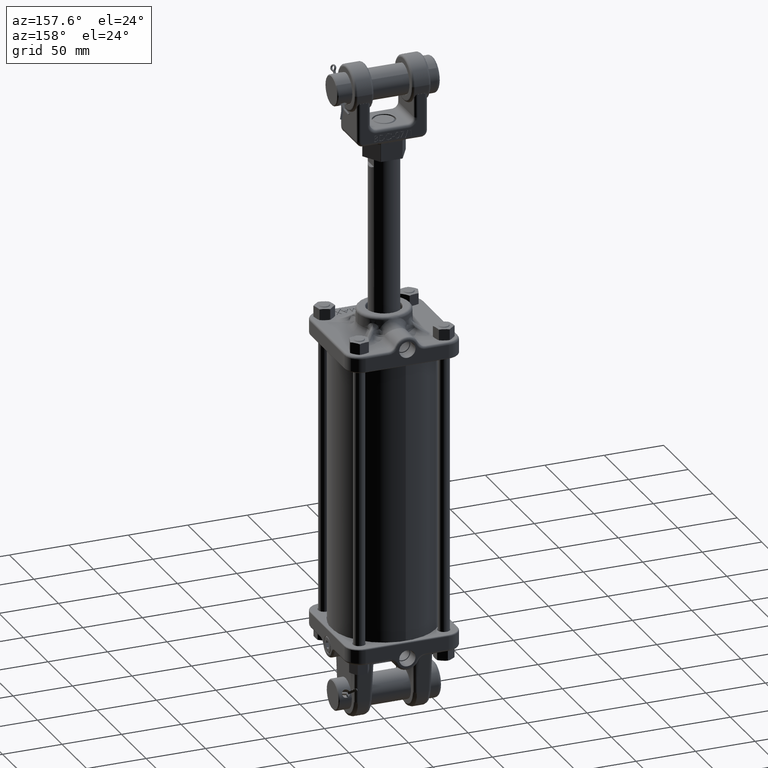
[diagram: clean part render]
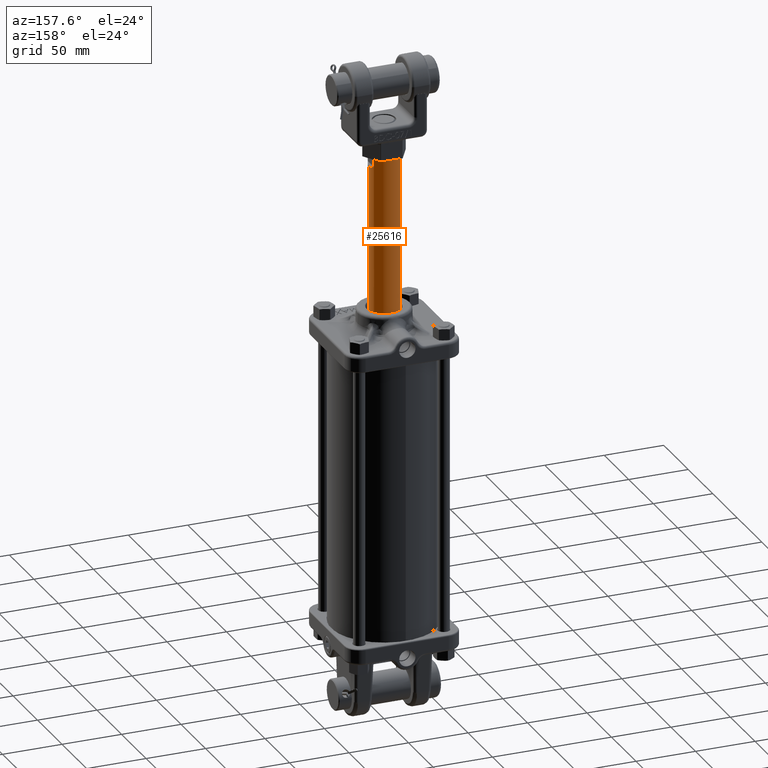
[diagram: same view with one face highlighted and labeled with its STEP entity id]
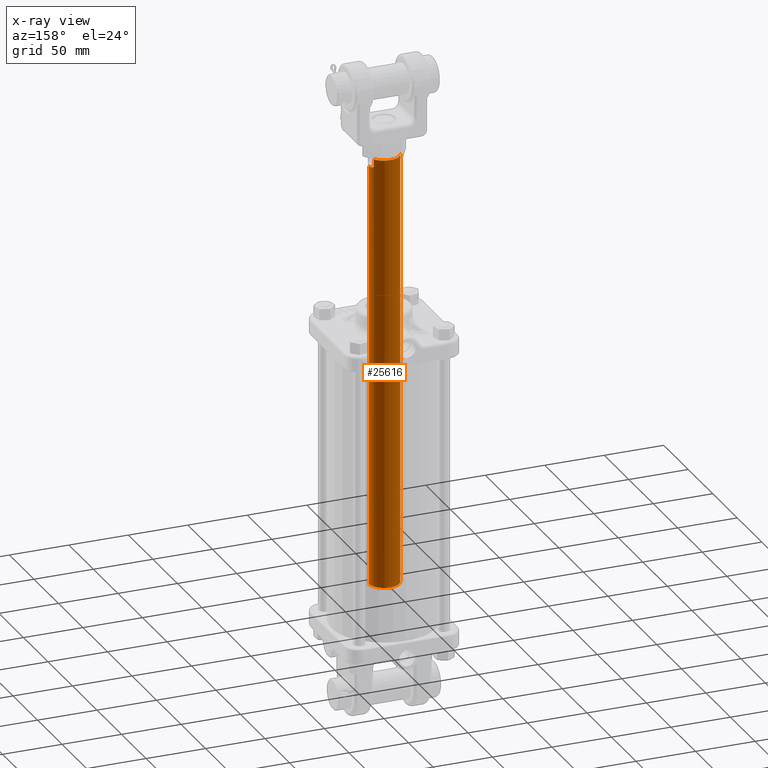
[diagram: x-ray of the same camera — body ghosted, the highlighted face saturated]
A machine part, auxiliary view. The second image highlights one B-rep face of the part: STEP entity #25616.
The next image is the same camera in x-ray: the body ghosted, the highlighted face saturated — about 0% of this face is hidden behind the body in this view.
In plain terms, the highlighted cylindrical surface (edge-blend (fillet) strip) has radius 12.7 mm, axis along (0, 0, 1).
Its self-contained STEP definition (entity closure, byte-faithful):
#530 = CARTESIAN_POINT ( 'NONE',  ( 0.000000000000000000, 0.000000000000000000, 0.000000000000000000 ) ) ;
#890 = ORIENTED_EDGE ( 'NONE', *, *, #12836, .T. ) ;
#1434 = DIRECTION ( 'NONE',  ( -0.000000000000000000, -0.000000000000000000, 1.000000000000000000 ) ) ;
#1747 = EDGE_CURVE ( 'NONE', #32056, #44703, #30902, .T. ) ;
#2498 = VERTEX_POINT ( 'NONE', #4871 ) ;
#2756 = ORIENTED_EDGE ( 'NONE', *, *, #19191, .T. ) ;
#3546 = DIRECTION ( 'NONE',  ( -0.000000000000000000, -0.000000000000000000, 1.000000000000000000 ) ) ;
#3592 = CARTESIAN_POINT ( 'NONE',  ( -0.4501506884798672781, 0.2176335398349746597, -0.3269289321881345134 ) ) ;
#3597 = B_SPLINE_CURVE_WITH_KNOTS ( 'NONE', 3,
 ( #13109, #26506, #30409, #44952, #23283, #9648, #33652, #45175, #5719, #40564 ),
 .UNSPECIFIED., .F., .F.,
 ( 4, 2, 2, 2, 4 ),
 ( 0.000000000000000000, 0.0003228504061141324630, 0.0006457008122282649259, 0.0009685512183423973347, 0.001291401624456529852 ),
 .UNSPECIFIED. ) ;
#4871 = CARTESIAN_POINT ( 'NONE',  ( 0.4348958333333333148, 0.2467095744986513572, -0.2915735931288072069 ) ) ;
#5138 = CARTESIAN_POINT ( 'NONE',  ( -0.5000000000000000000, 6.123233995736766036E-17, -0.3747842712474621085 ) ) ;
#5611 = LINE ( 'NONE', #30302, #28957 ) ;
#5719 = CARTESIAN_POINT ( 'NONE',  ( 0.4484379772436481448, 0.2211760918824939859, -0.3252847294013642143 ) ) ;
#6243 = DIRECTION ( 'NONE',  ( -0.000000000000000000, -0.000000000000000000, 1.000000000000000000 ) ) ;
#6585 = AXIS2_PLACEMENT_3D ( 'NONE', #23142, #37665, #26145 ) ;
#7231 = CYLINDRICAL_SURFACE ( 'NONE', #15089, 0.5000000000000000000 ) ;
#7254 = CARTESIAN_POINT ( 'NONE',  ( -0.4467269112734696956, 0.2247152408808253954, -0.3236421060699928298 ) ) ;
#7468 = CARTESIAN_POINT ( 'NONE',  ( -0.4501506884798672781, 0.2176335398349746597, -0.3269289321881345134 ) ) ;
#7813 = CARTESIAN_POINT ( 'NONE',  ( -0.5000000000000001110, 0.07569709255021749017, -0.3747842712474621640 ) ) ;
#7955 = CARTESIAN_POINT ( 'NONE',  ( 0.5000000000000000000, 0.000000000000000000, -0.3747842712474620530 ) ) ;
#8035 = ORIENTED_EDGE ( 'NONE', *, *, #11121, .T. ) ;
#8105 = ORIENTED_EDGE ( 'NONE', *, *, #33886, .T. ) ;
#8535 = EDGE_CURVE ( 'NONE', #26968, #45325, #16857, .T. ) ;
#8838 = ORIENTED_EDGE ( 'NONE', *, *, #1747, .T. ) ;
#8972 = VECTOR ( 'NONE', #30920, 39.37007874015748143 ) ;
#9059 = VECTOR ( 'NONE', #1434, 39.37007874015748143 ) ;
#9428 = ORIENTED_EDGE ( 'NONE', *, *, #8535, .T. ) ;
#9648 = CARTESIAN_POINT ( 'NONE',  ( 0.4417696673712570576, 0.2341991812894257119, -0.3166046088173631867 ) ) ;
#10285 = CARTESIAN_POINT ( 'NONE',  ( -0.4433312045135315294, 0.2312951266439633169, -0.3196092831511848087 ) ) ;
#10958 = CARTESIAN_POINT ( 'NONE',  ( -0.4374827249763971193, 0.2421012513714180248, -0.3076135607478617806 ) ) ;
#11121 = EDGE_CURVE ( 'NONE', #2498, #17340, #3597, .T. ) ;
#11348 = DIRECTION ( 'NONE',  ( -0.000000000000000000, -0.000000000000000000, 1.000000000000000000 ) ) ;
#11796 = CARTESIAN_POINT ( 'NONE',  ( -0.4348958333333333148, 0.2467095744986514960, 0.000000000000000000 ) ) ;
#12098 = EDGE_CURVE ( 'NONE', #28134, #32056, #43417, .T. ) ;
#12476 = ORIENTED_EDGE ( 'NONE', *, *, #12098, .T. ) ;
#12757 = CARTESIAN_POINT ( 'NONE',  ( 0.4348958333333332038, 0.2467095744986515515, -0.05000000000000030115 ) ) ;
#12836 = EDGE_CURVE ( 'NONE', #16421, #28134, #26649, .T. ) ;
#13109 = CARTESIAN_POINT ( 'NONE',  ( 0.4348958333333333148, 0.2467095744986513572, -0.2915735931288072069 ) ) ;
#13973 = ORIENTED_EDGE ( 'NONE', *, *, #33841, .T. ) ;
#14196 =( BOUNDED_CURVE ( )  B_SPLINE_CURVE ( 3, ( #24659, #45190, #24212, #27886 ),
 .UNSPECIFIED., .F., .T. ) 
 B_SPLINE_CURVE_WITH_KNOTS ( ( 4, 4 ),
 ( 2.691257742235581230, 3.141592653589793116 ),
 .UNSPECIFIED. ) 
 CURVE ( )  GEOMETRIC_REPRESENTATION_ITEM ( )  RATIONAL_B_SPLINE_CURVE ( ( 1.000000000000000000, 0.9831711553165886075, 0.9831711553165886075, 1.000000000000000000 ) ) 
 REPRESENTATION_ITEM ( '' )  );
#15089 = AXIS2_PLACEMENT_3D ( 'NONE', #530, #3546, #17636 ) ;
#15812 = CARTESIAN_POINT ( 'NONE',  ( 0.4501506884798671115, 0.2176335398349749095, -0.3269289321881344024 ) ) ;
#16421 = VERTEX_POINT ( 'NONE', #3592 ) ;
#16857 = LINE ( 'NONE', #20084, #8972 ) ;
#17340 = VERTEX_POINT ( 'NONE', #15812 ) ;
#17636 = DIRECTION ( 'NONE',  ( 1.000000000000000000, 0.000000000000000000, 0.000000000000000000 ) ) ;
#19191 = EDGE_CURVE ( 'NONE', #17340, #25219, #14196, .T. ) ;
#20084 = CARTESIAN_POINT ( 'NONE',  ( -0.5000000000000000000, 6.123233995736766036E-17, 0.000000000000000000 ) ) ;
#20670 = CARTESIAN_POINT ( 'NONE',  ( -0.4388374385451497273, 0.2396491198759101993, -0.3109261429722601222 ) ) ;
#22211 = FACE_OUTER_BOUND ( 'NONE', #23696, .T. ) ;
#22343 = AXIS2_PLACEMENT_3D ( 'NONE', #28144, #6243, #31399 ) ;
#23142 = CARTESIAN_POINT ( 'NONE',  ( 0.000000000000000000, 0.000000000000000000, -0.05000000000000030115 ) ) ;
#23283 = CARTESIAN_POINT ( 'NONE',  ( 0.4388185524344280219, 0.2396830690000891495, -0.3108766657119989563 ) ) ;
#23696 = EDGE_LOOP ( 'NONE', ( #13973, #9428, #8105, #890, #12476, #8838, #26116, #8035, #2756, #27928 ) ) ;
#24212 = CARTESIAN_POINT ( 'NONE',  ( 0.5000000000000001110, 0.07569709255021783711, -0.3747842712474621085 ) ) ;
#24659 = CARTESIAN_POINT ( 'NONE',  ( 0.4501506884798671115, 0.2176335398349749095, -0.3269289321881344024 ) ) ;
#25185 = CARTESIAN_POINT ( 'NONE',  ( -0.4348958333333333703, 0.2467095744986510797, -0.2915735931288072069 ) ) ;
#25219 = VERTEX_POINT ( 'NONE', #7955 ) ;
#25616 = ADVANCED_FACE ( 'NONE', ( #22211 ), #7231, .T. ) ;
#25828 = CARTESIAN_POINT ( 'NONE',  ( -0.4830991408937064802, 0.1494833431801650403, -0.3585594465054203761 ) ) ;
#26116 = ORIENTED_EDGE ( 'NONE', *, *, #33538, .T. ) ;
#26145 = DIRECTION ( 'NONE',  ( -1.000000000000000000, 0.000000000000000000, 0.000000000000000000 ) ) ;
#26506 = CARTESIAN_POINT ( 'NONE',  ( 0.4348958333333333148, 0.2467095744986513572, -0.2958821711048186809 ) ) ;
#26649 = B_SPLINE_CURVE_WITH_KNOTS ( 'NONE', 3,
 ( #7468, #7254, #10285, #20670, #10958, #35406, #27823, #31945 ),
 .UNSPECIFIED., .F., .F.,
 ( 4, 2, 2, 4 ),
 ( 0.000000000000000000, 0.0006415558573278557679, 0.0009623337859917854408, 0.001283111714655715005 ),
 .UNSPECIFIED. ) ;
#26939 = EDGE_CURVE ( 'NONE', #44297, #25219, #40208, .T. ) ;
#26968 = VERTEX_POINT ( 'NONE', #33520 ) ;
#27823 = CARTESIAN_POINT ( 'NONE',  ( -0.4348958333333308168, 0.2467095744986818884, -0.2959027735644199075 ) ) ;
#27886 = CARTESIAN_POINT ( 'NONE',  ( 0.5000000000000000000, 0.000000000000000000, -0.3747842712474620530 ) ) ;
#27928 = ORIENTED_EDGE ( 'NONE', *, *, #26939, .F. ) ;
#28134 = VERTEX_POINT ( 'NONE', #25185 ) ;
#28144 = CARTESIAN_POINT ( 'NONE',  ( 0.000000000000000000, 0.000000000000000000, -14.36500000000000021 ) ) ;
#28957 = VECTOR ( 'NONE', #44389, 39.37007874015748143 ) ;
#30302 = CARTESIAN_POINT ( 'NONE',  ( 0.4348958333333332038, 0.2467095744986516070, 0.000000000000000000 ) ) ;
#30409 = CARTESIAN_POINT ( 'NONE',  ( 0.4354954148718842011, 0.2456579332198683963, -0.3000675764756112751 ) ) ;
#30801 = CARTESIAN_POINT ( 'NONE',  ( 0.5000000000000000000, 0.000000000000000000, -14.36500000000000021 ) ) ;
#30902 = CIRCLE ( 'NONE', #6585, 0.5000000000000000000 ) ;
#30920 = DIRECTION ( 'NONE',  ( -0.000000000000000000, -0.000000000000000000, 1.000000000000000000 ) ) ;
#31399 = DIRECTION ( 'NONE',  ( 1.000000000000000000, 0.000000000000000000, 0.000000000000000000 ) ) ;
#31945 = CARTESIAN_POINT ( 'NONE',  ( -0.4348958333333333703, 0.2467095744986510797, -0.2915735931288072069 ) ) ;
#32056 = VERTEX_POINT ( 'NONE', #40184 ) ;
#32063 = CARTESIAN_POINT ( 'NONE',  ( -0.4501506884798672781, 0.2176335398349746597, -0.3269289321881345134 ) ) ;
#33520 = CARTESIAN_POINT ( 'NONE',  ( -0.5000000000000000000, 6.123233995736766036E-17, -14.36500000000000021 ) ) ;
#33538 = EDGE_CURVE ( 'NONE', #44703, #2498, #5611, .T. ) ;
#33652 = CARTESIAN_POINT ( 'NONE',  ( 0.4434049465351517227, 0.2310960756738972277, -0.3190943121796323001 ) ) ;
#33841 = EDGE_CURVE ( 'NONE', #44297, #26968, #34967, .T. ) ;
#33886 = EDGE_CURVE ( 'NONE', #45325, #16421, #35434, .T. ) ;
#34967 = CIRCLE ( 'NONE', #22343, 0.5000000000000000000 ) ;
#35406 = CARTESIAN_POINT ( 'NONE',  ( -0.4354953054839109661, 0.2456582778370302311, -0.3000779715517498669 ) ) ;
#35434 =( BOUNDED_CURVE ( )  B_SPLINE_CURVE ( 3, ( #39876, #7813, #25828, #32063 ),
 .UNSPECIFIED., .F., .T. ) 
 B_SPLINE_CURVE_WITH_KNOTS ( ( 4, 4 ),
 ( 3.141592653589793116, 3.591927564944004558 ),
 .UNSPECIFIED. ) 
 CURVE ( )  GEOMETRIC_REPRESENTATION_ITEM ( )  RATIONAL_B_SPLINE_CURVE ( ( 1.000000000000000000, 0.9831711553165886075, 0.9831711553165886075, 1.000000000000000000 ) ) 
 REPRESENTATION_ITEM ( '' )  );
#37665 = DIRECTION ( 'NONE',  ( 0.000000000000000000, 0.000000000000000000, -1.000000000000000000 ) ) ;
#39222 = VECTOR ( 'NONE', #11348, 39.37007874015748143 ) ;
#39528 = CARTESIAN_POINT ( 'NONE',  ( 0.5000000000000000000, 0.000000000000000000, 0.000000000000000000 ) ) ;
#39876 = CARTESIAN_POINT ( 'NONE',  ( -0.5000000000000000000, 6.123233995736766036E-17, -0.3747842712474621085 ) ) ;
#40184 = CARTESIAN_POINT ( 'NONE',  ( -0.4348958333333333148, 0.2467095744986511907, -0.05000000000000030115 ) ) ;
#40208 = LINE ( 'NONE', #39528, #9059 ) ;
#40564 = CARTESIAN_POINT ( 'NONE',  ( 0.4501506884798671115, 0.2176335398349749095, -0.3269289321881344024 ) ) ;
#43417 = LINE ( 'NONE', #11796, #39222 ) ;
#44297 = VERTEX_POINT ( 'NONE', #30801 ) ;
#44389 = DIRECTION ( 'NONE',  ( 0.000000000000000000, 0.000000000000000000, -1.000000000000000000 ) ) ;
#44703 = VERTEX_POINT ( 'NONE', #12757 ) ;
#44952 = CARTESIAN_POINT ( 'NONE',  ( 0.4374651544532361935, 0.2421328461144789945, -0.3075576541237061701 ) ) ;
#45175 = CARTESIAN_POINT ( 'NONE',  ( 0.4467340114817215380, 0.2245931116244785641, -0.3234256475990895940 ) ) ;
#45190 = CARTESIAN_POINT ( 'NONE',  ( 0.4830991408937063691, 0.1494833431801654289, -0.3585594465054200985 ) ) ;
#45325 = VERTEX_POINT ( 'NONE', #5138 ) ;